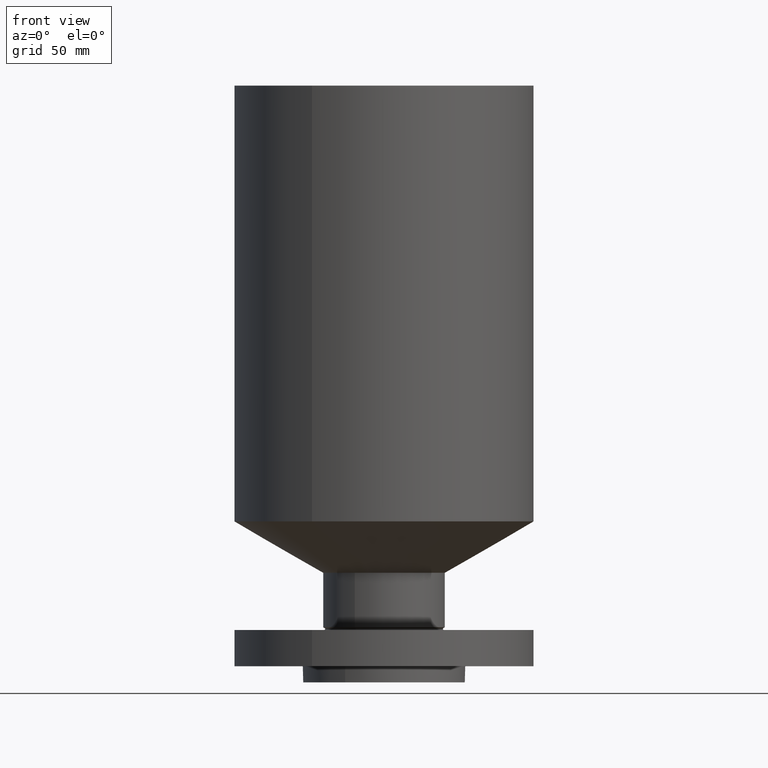
[diagram: clean part render]
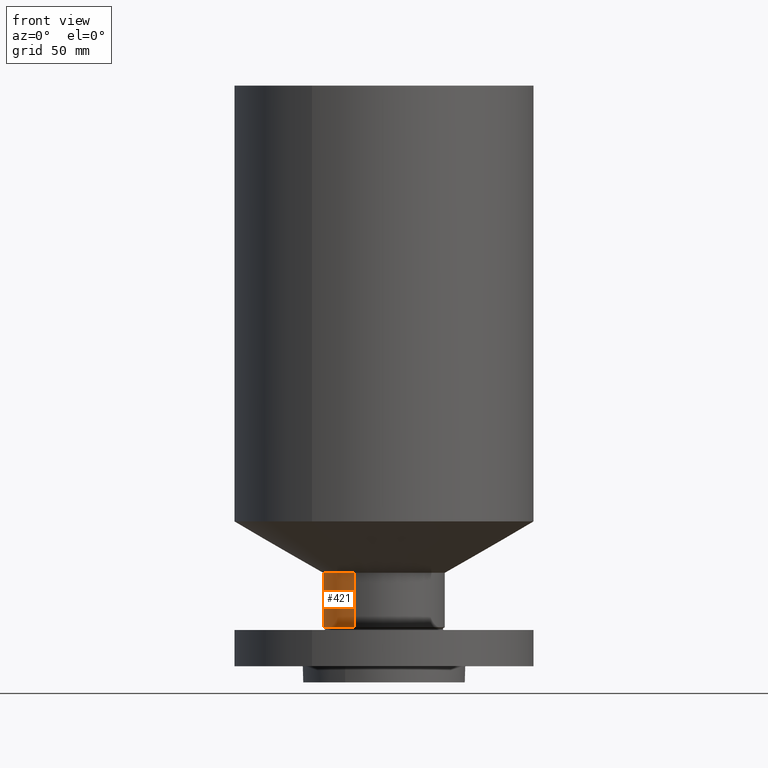
[diagram: same view with one face highlighted and labeled with its STEP entity id]
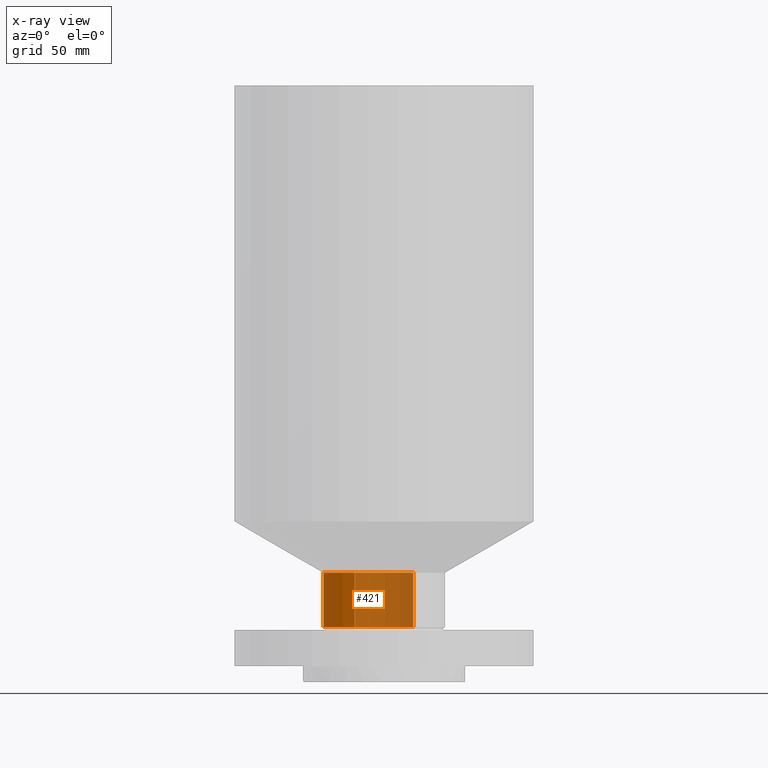
[diagram: x-ray of the same camera — body ghosted, the highlighted face saturated]
A machine part, front view. The second image highlights one B-rep face of the part: STEP entity #421.
The next image is the same camera in x-ray: the body ghosted, the highlighted face saturated — about 65% of this face is hidden behind the body in this view.
In plain terms, the highlighted cylindrical surface (partial cylindrical patch) has radius 23.876 mm, axis along (0, 0, -1).
Its self-contained STEP definition (entity closure, byte-faithful):
#369=AXIS2_PLACEMENT_3D('Circle Axis2P3D',#367,#368,$) ;
#382=AXIS2_PLACEMENT_3D('Cylinder Axis2P3D',#379,#380,#381) ;
#412=AXIS2_PLACEMENT_3D('Circle Axis2P3D',#410,#411,$) ;
#345=CARTESIAN_POINT('Vertex',(0.45066000629,0.82492760818,0.598480762116)) ;
#352=CARTESIAN_POINT('Vertex',(-0.45066000629,-0.82492760818,0.598480762116)) ;
#367=CARTESIAN_POINT('Axis2P3D Location',(0.,0.,0.598480762116)) ;
#379=CARTESIAN_POINT('Axis2P3D Location',(0.,0.,4.34375000002)) ;
#384=CARTESIAN_POINT('Line Origine',(0.45066000629,0.82492760818,1.01799038106)) ;
#388=CARTESIAN_POINT('Vertex',(0.45066000629,0.82492760818,1.43750000001)) ;
#395=CARTESIAN_POINT('Vertex',(-0.45066000629,-0.82492760818,1.43750000001)) ;
#398=CARTESIAN_POINT('Line Origine',(-0.45066000629,-0.82492760818,1.01799038106)) ;
#410=CARTESIAN_POINT('Axis2P3D Location',(0.,0.,1.43750000001)) ;
#368=DIRECTION('Axis2P3D Direction',(-0.,0.,0.0393700787402)) ;
#380=DIRECTION('Axis2P3D Direction',(0.,0.,-0.0393700787402)) ;
#381=DIRECTION('Axis2P3D XDirection',(-0.0188750212049,-0.0345504945626,0.)) ;
#385=DIRECTION('Vector Direction',(0.,0.,-0.0393700787402)) ;
#399=DIRECTION('Vector Direction',(0.,0.,-0.0393700787402)) ;
#411=DIRECTION('Axis2P3D Direction',(0.,0.,-0.0393700787402)) ;
#386=VECTOR('Line Direction',#385,0.0393700787402) ;
#400=VECTOR('Line Direction',#399,0.0393700787402) ;
#416=ORIENTED_EDGE('',*,*,#371,.F.) ;
#417=ORIENTED_EDGE('',*,*,#402,.T.) ;
#418=ORIENTED_EDGE('',*,*,#414,.T.) ;
#419=ORIENTED_EDGE('',*,*,#390,.F.) ;
#421=ADVANCED_FACE('PartBody',(#420),#383,.T.) ;
#370=CIRCLE('generated circle',#369,0.940000000004) ;
#413=CIRCLE('generated circle',#412,0.940000000004) ;
#383=CYLINDRICAL_SURFACE('generated cylinder',#382,0.940000000004) ;
#371=EDGE_CURVE('',#353,#346,#370,.F.) ;
#390=EDGE_CURVE('',#346,#389,#387,.F.) ;
#402=EDGE_CURVE('',#353,#396,#401,.F.) ;
#414=EDGE_CURVE('',#396,#389,#413,.T.) ;
#415=EDGE_LOOP('',(#416,#417,#418,#419)) ;
#420=FACE_OUTER_BOUND('',#415,.T.) ;
#387=LINE('Line',#384,#386) ;
#401=LINE('Line',#398,#400) ;
#346=VERTEX_POINT('',#345) ;
#353=VERTEX_POINT('',#352) ;
#389=VERTEX_POINT('',#388) ;
#396=VERTEX_POINT('',#395) ;